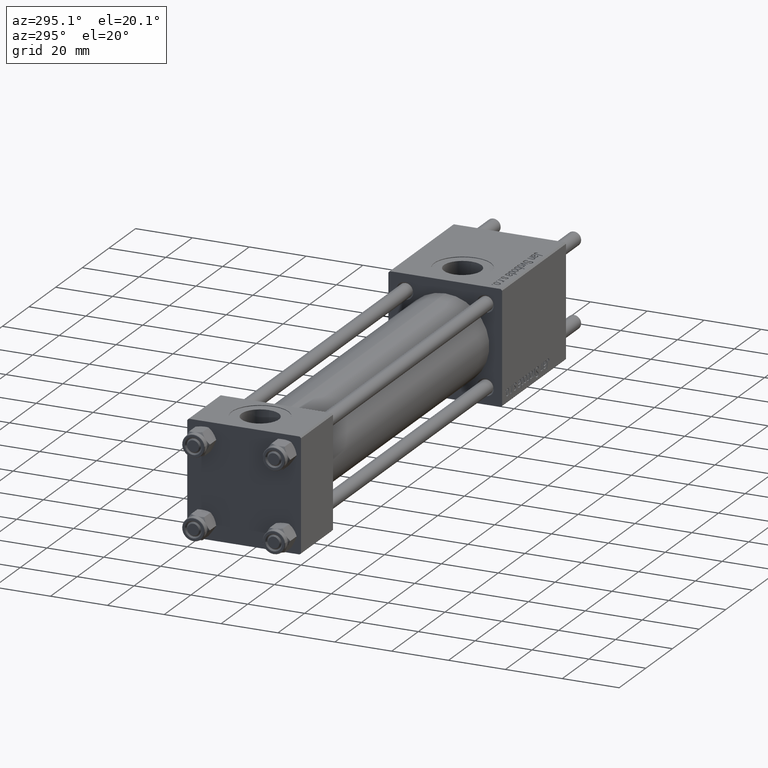
[diagram: clean part render]
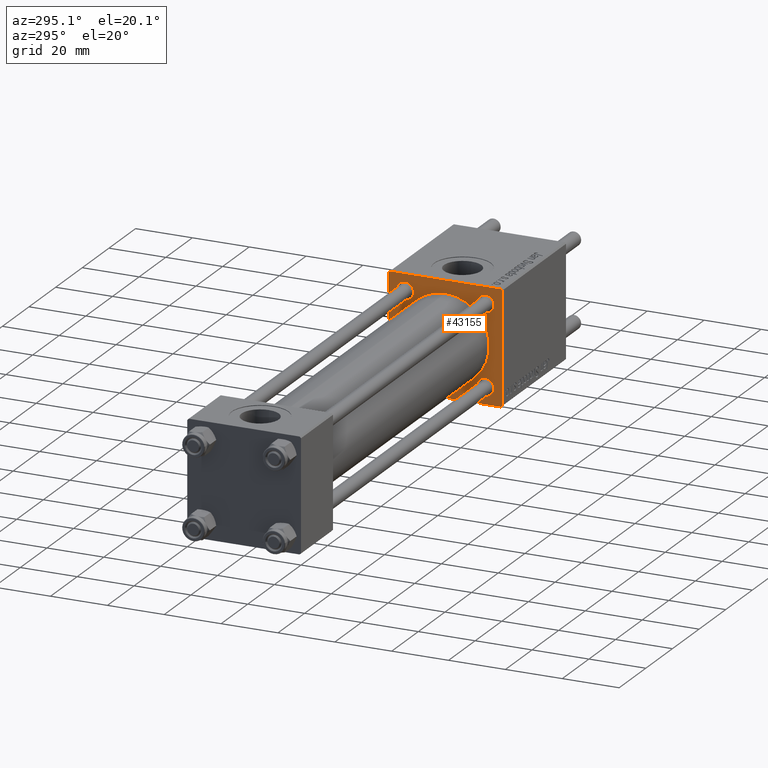
[diagram: same view with one face highlighted and labeled with its STEP entity id]
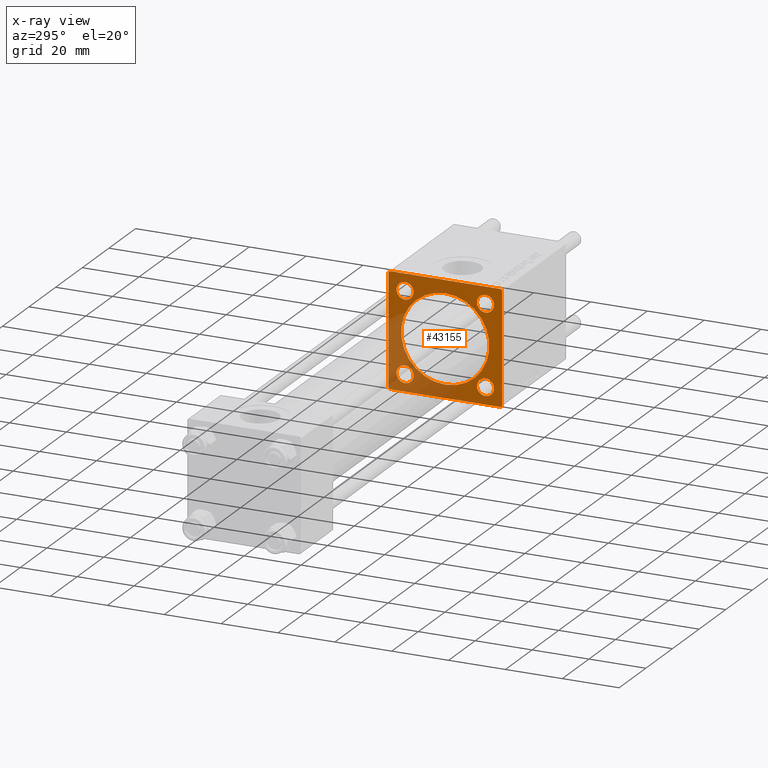
[diagram: x-ray of the same camera — body ghosted, the highlighted face saturated]
A machine part, auxiliary view. The second image highlights one B-rep face of the part: STEP entity #43155.
The next image is the same camera in x-ray: the body ghosted, the highlighted face saturated — about 30% of this face is hidden behind the body in this view.
In plain terms, the highlighted planar face has unit normal (-1, 0, 0).
Its self-contained STEP definition (entity closure, byte-faithful):
#462 = DIRECTION ( 'NONE',  ( -0.000000000000000000, 0.000000000000000000, 1.000000000000000000 ) ) ;
#481 = VERTEX_POINT ( 'NONE', #46618 ) ;
#533 = CIRCLE ( 'NONE', #3277, 2.999999999999976463 ) ;
#1300 = FACE_BOUND ( 'NONE', #27636, .T. ) ;
#1463 = EDGE_LOOP ( 'NONE', ( #29264, #7474 ) ) ;
#2623 = LINE ( 'NONE', #54776, #40643 ) ;
#2996 = CIRCLE ( 'NONE', #5748, 2.999999999999973355 ) ;
#3035 = CIRCLE ( 'NONE', #6737, 2.999999999999976463 ) ;
#3043 = DIRECTION ( 'NONE',  ( 1.000000000000000000, 0.000000000000000000, 0.000000000000000000 ) ) ;
#3277 = AXIS2_PLACEMENT_3D ( 'NONE', #38627, #56130, #20895 ) ;
#3392 = CARTESIAN_POINT ( 'NONE',  ( 151.0000000000000000, -20.00000000000000000, -19.49999999999999645 ) ) ;
#3400 = CARTESIAN_POINT ( 'NONE',  ( 151.0000000000000000, 19.50000000000002487, 20.00000000000000000 ) ) ;
#3449 = ORIENTED_EDGE ( 'NONE', *, *, #4638, .T. ) ;
#3455 = EDGE_CURVE ( 'NONE', #14238, #33662, #2996, .T. ) ;
#3711 = CARTESIAN_POINT ( 'NONE',  ( 151.0000000000000000, 14.15000000000000036, 14.15000000000000036 ) ) ;
#3728 = ORIENTED_EDGE ( 'NONE', *, *, #5326, .T. ) ;
#4025 = ORIENTED_EDGE ( 'NONE', *, *, #51387, .T. ) ;
#4370 = ORIENTED_EDGE ( 'NONE', *, *, #17455, .T. ) ;
#4389 = EDGE_CURVE ( 'NONE', #15167, #28721, #5395, .T. ) ;
#4600 = CIRCLE ( 'NONE', #36600, 15.50000000000000000 ) ;
#4638 = EDGE_CURVE ( 'NONE', #13768, #56571, #53940, .T. ) ;
#5287 = VERTEX_POINT ( 'NONE', #39488 ) ;
#5326 = EDGE_CURVE ( 'NONE', #16978, #23001, #3035, .T. ) ;
#5395 = LINE ( 'NONE', #48654, #13140 ) ;
#5541 = CARTESIAN_POINT ( 'NONE',  ( 151.0000000000000000, 19.99999999999999645, 19.50000000000002842 ) ) ;
#5748 = AXIS2_PLACEMENT_3D ( 'NONE', #3711, #20070, #47269 ) ;
#6624 = ORIENTED_EDGE ( 'NONE', *, *, #28707, .T. ) ;
#6737 = AXIS2_PLACEMENT_3D ( 'NONE', #15430, #41463, #14864 ) ;
#6780 = VECTOR ( 'NONE', #29304, 1000.000000000000000 ) ;
#7474 = ORIENTED_EDGE ( 'NONE', *, *, #55400, .T. ) ;
#7523 = DIRECTION ( 'NONE',  ( 0.000000000000000000, 0.000000000000000000, -1.000000000000000000 ) ) ;
#7760 = EDGE_LOOP ( 'NONE', ( #41860, #3449, #40158, #56067, #13824, #21021, #4025, #32314 ) ) ;
#7770 = ORIENTED_EDGE ( 'NONE', *, *, #3455, .T. ) ;
#8464 = DIRECTION ( 'NONE',  ( 0.000000000000000000, 0.000000000000000000, 1.000000000000000000 ) ) ;
#8601 = CIRCLE ( 'NONE', #24110, 2.999999999999976463 ) ;
#9066 = CIRCLE ( 'NONE', #42008, 2.999999999999976463 ) ;
#9654 = CARTESIAN_POINT ( 'NONE',  ( 151.0000000000000000, 19.74999999999999645, -19.74999999999999645 ) ) ;
#10148 = CARTESIAN_POINT ( 'NONE',  ( 151.0000000000000000, 14.15000000000000036, 17.14999999999997726 ) ) ;
#10475 = CARTESIAN_POINT ( 'NONE',  ( 151.0000000000000000, -14.15000000000000036, 14.15000000000000036 ) ) ;
#10504 = FACE_BOUND ( 'NONE', #17699, .T. ) ;
#10758 = DIRECTION ( 'NONE',  ( 1.000000000000000000, 0.000000000000000000, 0.000000000000000000 ) ) ;
#11028 = CARTESIAN_POINT ( 'NONE',  ( 151.0000000000000000, -19.50000000000003197, 19.99999999999999645 ) ) ;
#11038 = DIRECTION ( 'NONE',  ( 0.000000000000000000, 0.000000000000000000, 1.000000000000000000 ) ) ;
#11701 = ORIENTED_EDGE ( 'NONE', *, *, #50153, .T. ) ;
#11887 = LINE ( 'NONE', #20168, #6780 ) ;
#12234 = VERTEX_POINT ( 'NONE', #43916 ) ;
#12590 = AXIS2_PLACEMENT_3D ( 'NONE', #35848, #43904, #53349 ) ;
#13040 = EDGE_CURVE ( 'NONE', #13835, #28721, #11887, .T. ) ;
#13140 = VECTOR ( 'NONE', #56694, 1000.000000000000114 ) ;
#13214 = EDGE_LOOP ( 'NONE', ( #6624, #23073 ) ) ;
#13235 = CIRCLE ( 'NONE', #37904, 15.50000000000000000 ) ;
#13768 = VERTEX_POINT ( 'NONE', #35524 ) ;
#13824 = ORIENTED_EDGE ( 'NONE', *, *, #13040, .F. ) ;
#13835 = VERTEX_POINT ( 'NONE', #3400 ) ;
#14158 = DIRECTION ( 'NONE',  ( 0.000000000000000000, 0.7071067811865474617, -0.7071067811865474617 ) ) ;
#14238 = VERTEX_POINT ( 'NONE', #10148 ) ;
#14468 = VERTEX_POINT ( 'NONE', #53895 ) ;
#14864 = DIRECTION ( 'NONE',  ( 0.000000000000000000, 0.000000000000000000, 1.000000000000000000 ) ) ;
#14995 = CARTESIAN_POINT ( 'NONE',  ( 151.0000000000000000, -2.602085213965210642E-15, 0.000000000000000000 ) ) ;
#15167 = VERTEX_POINT ( 'NONE', #29070 ) ;
#15430 = CARTESIAN_POINT ( 'NONE',  ( 151.0000000000000000, 14.15000000000000036, -14.15000000000000036 ) ) ;
#16047 = CARTESIAN_POINT ( 'NONE',  ( 151.0000000000000000, -20.00000000000000355, 19.99999999999999645 ) ) ;
#16978 = VERTEX_POINT ( 'NONE', #18011 ) ;
#17455 = EDGE_CURVE ( 'NONE', #17614, #481, #533, .T. ) ;
#17614 = VERTEX_POINT ( 'NONE', #17743 ) ;
#17699 = EDGE_LOOP ( 'NONE', ( #7770, #11701 ) ) ;
#17743 = CARTESIAN_POINT ( 'NONE',  ( 151.0000000000000000, -14.15000000000000036, -17.14999999999997726 ) ) ;
#18011 = CARTESIAN_POINT ( 'NONE',  ( 151.0000000000000000, 14.15000000000000036, -11.15000000000002522 ) ) ;
#18965 = VERTEX_POINT ( 'NONE', #43451 ) ;
#19724 = CIRCLE ( 'NONE', #22448, 2.999999999999973355 ) ;
#19850 = ORIENTED_EDGE ( 'NONE', *, *, #45109, .T. ) ;
#20070 = DIRECTION ( 'NONE',  ( 1.000000000000000000, 0.000000000000000000, 0.000000000000000000 ) ) ;
#20104 = DIRECTION ( 'NONE',  ( 0.000000000000000000, -1.000000000000000000, 0.000000000000000000 ) ) ;
#20168 = CARTESIAN_POINT ( 'NONE',  ( 151.0000000000000000, 19.99999999999999645, 20.00000000000000000 ) ) ;
#20784 = CIRCLE ( 'NONE', #12590, 2.999999999999973355 ) ;
#20895 = DIRECTION ( 'NONE',  ( 0.000000000000000000, 0.000000000000000000, 1.000000000000000000 ) ) ;
#21021 = ORIENTED_EDGE ( 'NONE', *, *, #41437, .T. ) ;
#21100 = CARTESIAN_POINT ( 'NONE',  ( 151.0000000000000000, -2.602085213965210642E-15, 15.50000000000000000 ) ) ;
#22448 = AXIS2_PLACEMENT_3D ( 'NONE', #10475, #10758, #11038 ) ;
#22526 = PLANE ( 'NONE',  #29550 ) ;
#23001 = VERTEX_POINT ( 'NONE', #34878 ) ;
#23073 = ORIENTED_EDGE ( 'NONE', *, *, #47037, .T. ) ;
#23990 = VECTOR ( 'NONE', #14158, 1000.000000000000114 ) ;
#24110 = AXIS2_PLACEMENT_3D ( 'NONE', #30777, #52007, #8464 ) ;
#25528 = ORIENTED_EDGE ( 'NONE', *, *, #25706, .T. ) ;
#25706 = EDGE_CURVE ( 'NONE', #23001, #16978, #9066, .T. ) ;
#26065 = CIRCLE ( 'NONE', #40724, 2.999999999999973355 ) ;
#26709 = DIRECTION ( 'NONE',  ( 0.000000000000000000, -0.7071067811865474617, 0.7071067811865474617 ) ) ;
#27085 = DIRECTION ( 'NONE',  ( -1.000000000000000000, 0.000000000000000000, -0.000000000000000000 ) ) ;
#27636 = EDGE_LOOP ( 'NONE', ( #19850, #4370 ) ) ;
#27922 = CARTESIAN_POINT ( 'NONE',  ( 151.0000000000000000, 0.000000000000000000, 0.000000000000000000 ) ) ;
#28450 = CARTESIAN_POINT ( 'NONE',  ( 151.0000000000000000, -2.602085213965210642E-15, 0.000000000000000000 ) ) ;
#28567 = EDGE_LOOP ( 'NONE', ( #3728, #25528 ) ) ;
#28707 = EDGE_CURVE ( 'NONE', #32176, #5287, #4600, .T. ) ;
#28708 = CARTESIAN_POINT ( 'NONE',  ( 151.0000000000000000, 19.99999999999999645, -19.50000000000000000 ) ) ;
#28721 = VERTEX_POINT ( 'NONE', #11028 ) ;
#29070 = CARTESIAN_POINT ( 'NONE',  ( 151.0000000000000000, -20.00000000000000355, 19.50000000000002487 ) ) ;
#29264 = ORIENTED_EDGE ( 'NONE', *, *, #49390, .T. ) ;
#29304 = DIRECTION ( 'NONE',  ( 0.000000000000000000, -1.000000000000000000, -8.673617379884035472E-17 ) ) ;
#29550 = AXIS2_PLACEMENT_3D ( 'NONE', #27922, #27085, #462 ) ;
#29717 = VECTOR ( 'NONE', #48590, 1000.000000000000114 ) ;
#30150 = EDGE_CURVE ( 'NONE', #15167, #56571, #32066, .T. ) ;
#30777 = CARTESIAN_POINT ( 'NONE',  ( 151.0000000000000000, -14.15000000000000036, -14.15000000000000036 ) ) ;
#31084 = DIRECTION ( 'NONE',  ( 1.000000000000000000, 0.000000000000000000, 0.000000000000000000 ) ) ;
#31098 = LINE ( 'NONE', #9654, #29717 ) ;
#31115 = VECTOR ( 'NONE', #34334, 1000.000000000000000 ) ;
#31577 = DIRECTION ( 'NONE',  ( 1.000000000000000000, 0.000000000000000000, 0.000000000000000000 ) ) ;
#32066 = LINE ( 'NONE', #16047, #31115 ) ;
#32176 = VERTEX_POINT ( 'NONE', #21100 ) ;
#32314 = ORIENTED_EDGE ( 'NONE', *, *, #48754, .T. ) ;
#32638 = DIRECTION ( 'NONE',  ( 0.000000000000000000, 0.000000000000000000, 1.000000000000000000 ) ) ;
#33662 = VERTEX_POINT ( 'NONE', #47550 ) ;
#34334 = DIRECTION ( 'NONE',  ( 0.000000000000000000, 8.673617379884036705E-17, -1.000000000000000000 ) ) ;
#34426 = CARTESIAN_POINT ( 'NONE',  ( 151.0000000000000000, 19.99999999999999645, 20.00000000000000000 ) ) ;
#34878 = CARTESIAN_POINT ( 'NONE',  ( 151.0000000000000000, 14.15000000000000036, -17.14999999999997726 ) ) ;
#35524 = CARTESIAN_POINT ( 'NONE',  ( 151.0000000000000000, -19.49999999999999645, -20.00000000000000000 ) ) ;
#35693 = FACE_BOUND ( 'NONE', #28567, .T. ) ;
#35848 = CARTESIAN_POINT ( 'NONE',  ( 151.0000000000000000, -14.15000000000000036, 14.15000000000000036 ) ) ;
#35879 = LINE ( 'NONE', #53378, #23990 ) ;
#36519 = DIRECTION ( 'NONE',  ( 0.000000000000000000, 0.000000000000000000, 1.000000000000000000 ) ) ;
#36600 = AXIS2_PLACEMENT_3D ( 'NONE', #28450, #54559, #54269 ) ;
#37904 = AXIS2_PLACEMENT_3D ( 'NONE', #14995, #31577, #49627 ) ;
#38049 = VERTEX_POINT ( 'NONE', #28708 ) ;
#38627 = CARTESIAN_POINT ( 'NONE',  ( 151.0000000000000000, -14.15000000000000036, -14.15000000000000036 ) ) ;
#39488 = CARTESIAN_POINT ( 'NONE',  ( 151.0000000000000000, -7.038826752868131828E-16, -15.50000000000000000 ) ) ;
#40158 = ORIENTED_EDGE ( 'NONE', *, *, #30150, .F. ) ;
#40373 = VERTEX_POINT ( 'NONE', #5541 ) ;
#40643 = VECTOR ( 'NONE', #20104, 1000.000000000000000 ) ;
#40724 = AXIS2_PLACEMENT_3D ( 'NONE', #53726, #31084, #36519 ) ;
#41437 = EDGE_CURVE ( 'NONE', #13835, #40373, #35879, .T. ) ;
#41463 = DIRECTION ( 'NONE',  ( 1.000000000000000000, 0.000000000000000000, 0.000000000000000000 ) ) ;
#41860 = ORIENTED_EDGE ( 'NONE', *, *, #46572, .T. ) ;
#42008 = AXIS2_PLACEMENT_3D ( 'NONE', #47167, #3043, #32638 ) ;
#43155 = ADVANCED_FACE ( 'NONE', ( #52912, #10504, #35693, #1300, #44305, #45430 ), #22526, .T. ) ;
#43451 = CARTESIAN_POINT ( 'NONE',  ( 151.0000000000000000, 19.49999999999999645, -20.00000000000000000 ) ) ;
#43904 = DIRECTION ( 'NONE',  ( 1.000000000000000000, 0.000000000000000000, 0.000000000000000000 ) ) ;
#43916 = CARTESIAN_POINT ( 'NONE',  ( 151.0000000000000000, -14.15000000000000036, 17.14999999999997726 ) ) ;
#44233 = VECTOR ( 'NONE', #26709, 1000.000000000000114 ) ;
#44305 = FACE_BOUND ( 'NONE', #13214, .T. ) ;
#44504 = CARTESIAN_POINT ( 'NONE',  ( 151.0000000000000000, -19.74999999999999645, -19.74999999999999645 ) ) ;
#45109 = EDGE_CURVE ( 'NONE', #481, #17614, #8601, .T. ) ;
#45430 = FACE_OUTER_BOUND ( 'NONE', #7760, .T. ) ;
#46572 = EDGE_CURVE ( 'NONE', #18965, #13768, #2623, .T. ) ;
#46618 = CARTESIAN_POINT ( 'NONE',  ( 151.0000000000000000, -14.15000000000000036, -11.15000000000002522 ) ) ;
#47037 = EDGE_CURVE ( 'NONE', #5287, #32176, #13235, .T. ) ;
#47167 = CARTESIAN_POINT ( 'NONE',  ( 151.0000000000000000, 14.15000000000000036, -14.15000000000000036 ) ) ;
#47269 = DIRECTION ( 'NONE',  ( 0.000000000000000000, 0.000000000000000000, 1.000000000000000000 ) ) ;
#47550 = CARTESIAN_POINT ( 'NONE',  ( 151.0000000000000000, 14.15000000000000036, 11.15000000000002700 ) ) ;
#48590 = DIRECTION ( 'NONE',  ( -0.000000000000000000, -0.7071067811865474617, -0.7071067811865474617 ) ) ;
#48654 = CARTESIAN_POINT ( 'NONE',  ( 151.0000000000000000, -19.75000000000001421, 19.75000000000001421 ) ) ;
#48754 = EDGE_CURVE ( 'NONE', #38049, #18965, #31098, .T. ) ;
#49390 = EDGE_CURVE ( 'NONE', #12234, #14468, #19724, .T. ) ;
#49627 = DIRECTION ( 'NONE',  ( 0.000000000000000000, 0.000000000000000000, -1.000000000000000000 ) ) ;
#50153 = EDGE_CURVE ( 'NONE', #33662, #14238, #26065, .T. ) ;
#51387 = EDGE_CURVE ( 'NONE', #40373, #38049, #51628, .T. ) ;
#51628 = LINE ( 'NONE', #34426, #52683 ) ;
#52007 = DIRECTION ( 'NONE',  ( 1.000000000000000000, 0.000000000000000000, 0.000000000000000000 ) ) ;
#52683 = VECTOR ( 'NONE', #7523, 1000.000000000000000 ) ;
#52912 = FACE_BOUND ( 'NONE', #1463, .T. ) ;
#53349 = DIRECTION ( 'NONE',  ( 0.000000000000000000, 0.000000000000000000, 1.000000000000000000 ) ) ;
#53378 = CARTESIAN_POINT ( 'NONE',  ( 151.0000000000000000, 19.75000000000001066, 19.75000000000001066 ) ) ;
#53726 = CARTESIAN_POINT ( 'NONE',  ( 151.0000000000000000, 14.15000000000000036, 14.15000000000000036 ) ) ;
#53895 = CARTESIAN_POINT ( 'NONE',  ( 151.0000000000000000, -14.15000000000000036, 11.15000000000002700 ) ) ;
#53940 = LINE ( 'NONE', #44504, #44233 ) ;
#54269 = DIRECTION ( 'NONE',  ( 0.000000000000000000, 0.000000000000000000, -1.000000000000000000 ) ) ;
#54559 = DIRECTION ( 'NONE',  ( 1.000000000000000000, 0.000000000000000000, 0.000000000000000000 ) ) ;
#54776 = CARTESIAN_POINT ( 'NONE',  ( 151.0000000000000000, 19.99999999999999645, -20.00000000000000000 ) ) ;
#55400 = EDGE_CURVE ( 'NONE', #14468, #12234, #20784, .T. ) ;
#56067 = ORIENTED_EDGE ( 'NONE', *, *, #4389, .T. ) ;
#56130 = DIRECTION ( 'NONE',  ( 1.000000000000000000, 0.000000000000000000, 0.000000000000000000 ) ) ;
#56571 = VERTEX_POINT ( 'NONE', #3392 ) ;
#56694 = DIRECTION ( 'NONE',  ( -0.000000000000000000, 0.7071067811865474617, 0.7071067811865474617 ) ) ;